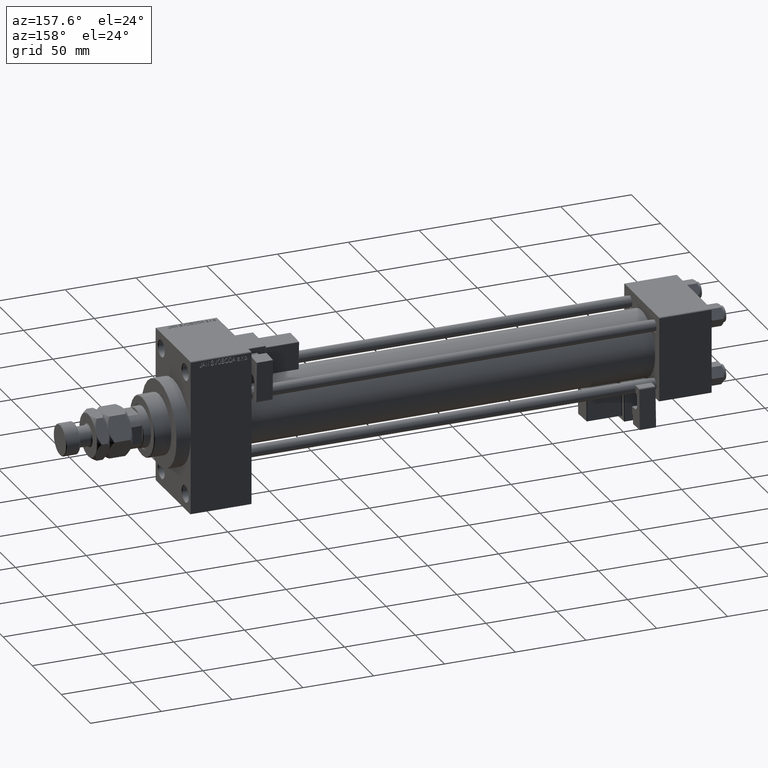
[diagram: clean part render]
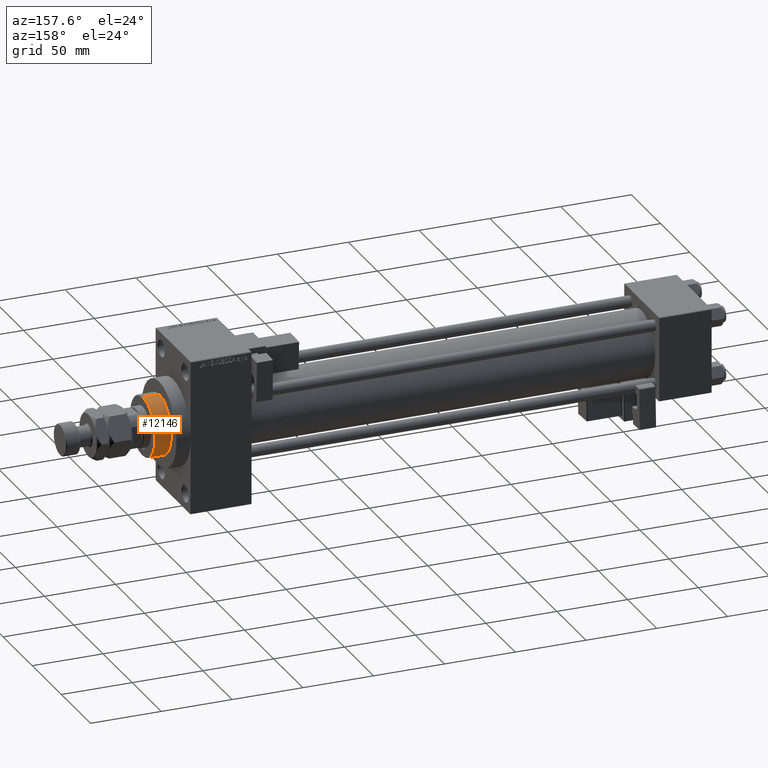
[diagram: same view with one face highlighted and labeled with its STEP entity id]
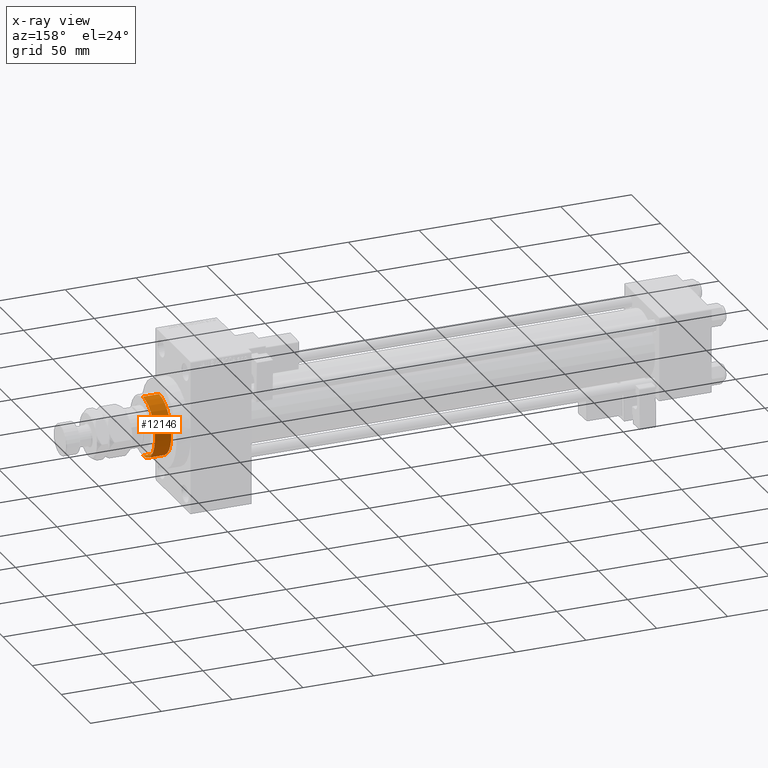
[diagram: x-ray of the same camera — body ghosted, the highlighted face saturated]
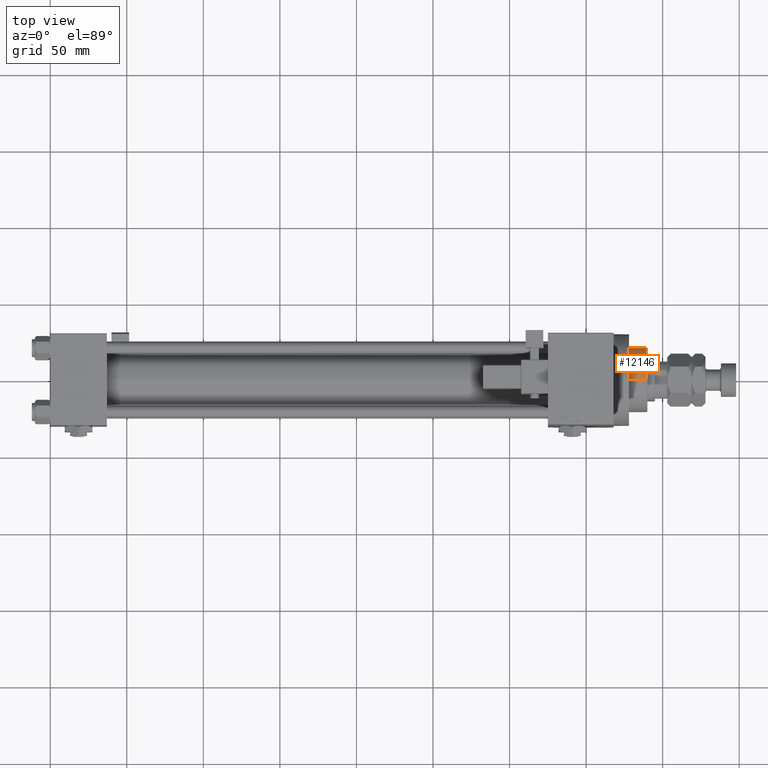
[diagram: same view with one face highlighted and labeled with its STEP entity id]
A machine part, auxiliary view. The second image highlights one B-rep face of the part: STEP entity #12146.
The next image is the same camera in x-ray: the body ghosted, the highlighted face saturated — about 0% of this face is hidden behind the body in this view.
A second angle (top view) of the same face is appended — the face is thin or edge-on in the first view.
In plain terms, the highlighted cylindrical surface (edge-blend (fillet) strip) has radius 21 mm, axis along (-1, 0, 0).
Its self-contained STEP definition (entity closure, byte-faithful):
#782 = CIRCLE ( 'NONE', #37755, 21.00000000000000000 ) ;
#1107 = CYLINDRICAL_SURFACE ( 'NONE', #15369, 21.00000000000000000 ) ;
#2624 = DIRECTION ( 'NONE',  ( 0.000000000000000000, 0.000000000000000000, -1.000000000000000000 ) ) ;
#4252 = VECTOR ( 'NONE', #53019, 1000.000000000000000 ) ;
#7191 = DIRECTION ( 'NONE',  ( -0.000000000000000000, -0.000000000000000000, -1.000000000000000000 ) ) ;
#7949 = ORIENTED_EDGE ( 'NONE', *, *, #14637, .T. ) ;
#8280 = VERTEX_POINT ( 'NONE', #21102 ) ;
#8370 = VECTOR ( 'NONE', #7191, 1000.000000000000000 ) ;
#11298 = CARTESIAN_POINT ( 'NONE',  ( 0.000000000000000000, 0.000000000000000000, 43.25999999999999801 ) ) ;
#11628 = CARTESIAN_POINT ( 'NONE',  ( 21.00000000000000000, 2.571758278209441661E-15, 55.26000000000000512 ) ) ;
#12146 = ADVANCED_FACE ( 'NONE', ( #37980 ), #1107, .T. ) ;
#13369 = EDGE_LOOP ( 'NONE', ( #13719, #39732, #15060, #7949 ) ) ;
#13617 = EDGE_CURVE ( 'NONE', #34303, #38925, #782, .T. ) ;
#13719 = ORIENTED_EDGE ( 'NONE', *, *, #14375, .F. ) ;
#14375 = EDGE_CURVE ( 'NONE', #34303, #8280, #27776, .T. ) ;
#14471 = DIRECTION ( 'NONE',  ( 1.000000000000000000, 0.000000000000000000, 0.000000000000000000 ) ) ;
#14637 = EDGE_CURVE ( 'NONE', #31452, #8280, #30918, .T. ) ;
#15060 = ORIENTED_EDGE ( 'NONE', *, *, #48055, .T. ) ;
#15369 = AXIS2_PLACEMENT_3D ( 'NONE', #46289, #25855, #42277 ) ;
#19555 = CARTESIAN_POINT ( 'NONE',  ( 21.00000000000000000, 2.571758278209441661E-15, 54.75999999999999091 ) ) ;
#21102 = CARTESIAN_POINT ( 'NONE',  ( 21.00000000000000000, 2.571758278209441661E-15, 43.25999999999999801 ) ) ;
#25855 = DIRECTION ( 'NONE',  ( -0.000000000000000000, -0.000000000000000000, -1.000000000000000000 ) ) ;
#27445 = DIRECTION ( 'NONE',  ( 0.000000000000000000, 0.000000000000000000, 1.000000000000000000 ) ) ;
#27776 = LINE ( 'NONE', #11628, #4252 ) ;
#30918 = CIRCLE ( 'NONE', #33476, 21.00000000000000000 ) ;
#31452 = VERTEX_POINT ( 'NONE', #42127 ) ;
#33476 = AXIS2_PLACEMENT_3D ( 'NONE', #11298, #27445, #40359 ) ;
#34303 = VERTEX_POINT ( 'NONE', #19555 ) ;
#35720 = CARTESIAN_POINT ( 'NONE',  ( -21.00000000000000000, 0.000000000000000000, 55.26000000000000512 ) ) ;
#37755 = AXIS2_PLACEMENT_3D ( 'NONE', #47014, #2624, #14471 ) ;
#37980 = FACE_OUTER_BOUND ( 'NONE', #13369, .T. ) ;
#38925 = VERTEX_POINT ( 'NONE', #41663 ) ;
#39732 = ORIENTED_EDGE ( 'NONE', *, *, #13617, .T. ) ;
#40030 = LINE ( 'NONE', #35720, #8370 ) ;
#40359 = DIRECTION ( 'NONE',  ( 1.000000000000000000, 0.000000000000000000, 0.000000000000000000 ) ) ;
#41663 = CARTESIAN_POINT ( 'NONE',  ( -21.00000000000000000, 0.000000000000000000, 54.75999999999999091 ) ) ;
#42127 = CARTESIAN_POINT ( 'NONE',  ( -21.00000000000000000, 0.000000000000000000, 43.25999999999999801 ) ) ;
#42277 = DIRECTION ( 'NONE',  ( -1.000000000000000000, 0.000000000000000000, 0.000000000000000000 ) ) ;
#46289 = CARTESIAN_POINT ( 'NONE',  ( 0.000000000000000000, 0.000000000000000000, 55.26000000000000512 ) ) ;
#47014 = CARTESIAN_POINT ( 'NONE',  ( 0.000000000000000000, 0.000000000000000000, 54.75999999999999091 ) ) ;
#48055 = EDGE_CURVE ( 'NONE', #38925, #31452, #40030, .T. ) ;
#53019 = DIRECTION ( 'NONE',  ( -0.000000000000000000, -0.000000000000000000, -1.000000000000000000 ) ) ;